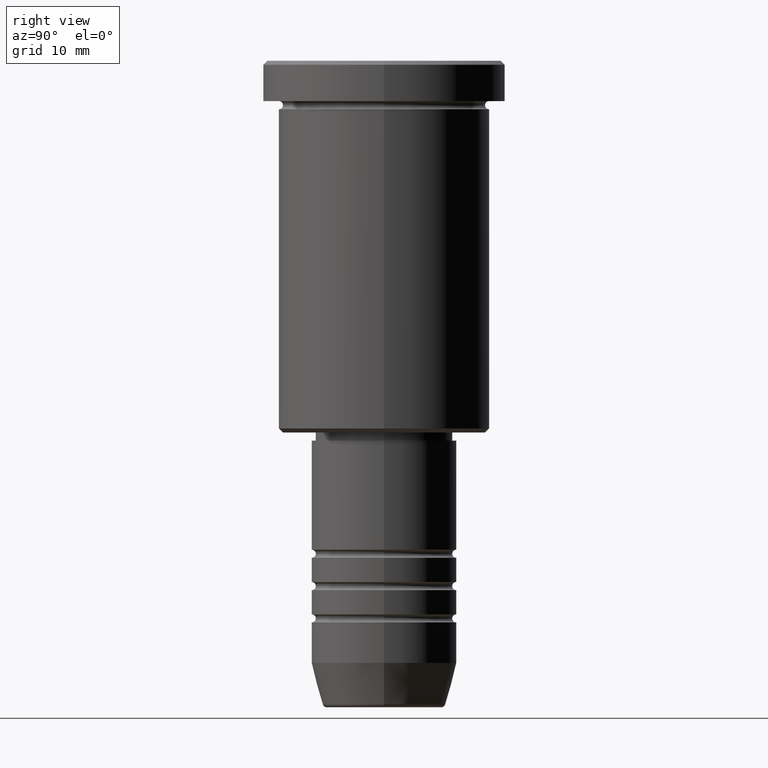
[diagram: clean part render]
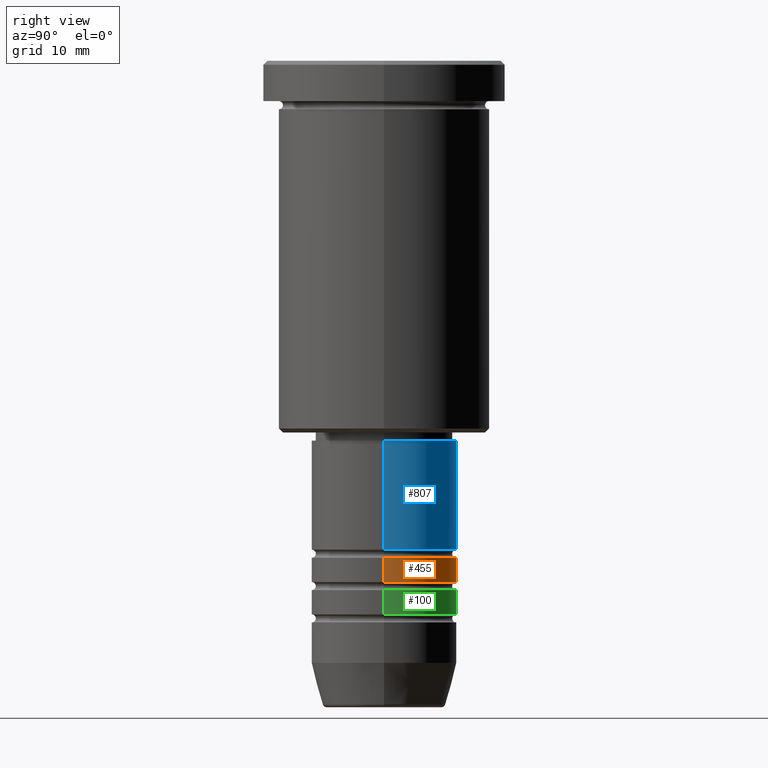
[diagram: same view with three faces highlighted in distinct colors, each labeled with its STEP entity id]
A machine part, right view with three faces highlighted in distinct colors.
Their STEP definitions:

[orange] entity #455 — the highlighted cylindrical surface (partial cylindrical patch) has radius 9 mm, axis along (-0, -0, 1).
#50 = AXIS2_PLACEMENT_3D ( 'NONE', #548, #855, #992 ) ;
#102 = CIRCLE ( 'NONE', #50, 9.000000000000001776 ) ;
#142 = CARTESIAN_POINT ( 'NONE',  ( -9.000000000000000000, 1.102182119232617714E-15, -61.50000000000000711 ) ) ;
#148 = AXIS2_PLACEMENT_3D ( 'NONE', #1181, #265, #175 ) ;
#158 = LINE ( 'NONE', #710, #492 ) ;
#175 = DIRECTION ( 'NONE',  ( 1.000000000000000000, 0.000000000000000000, 0.000000000000000000 ) ) ;
#233 = EDGE_CURVE ( 'NONE', #371, #401, #982, .T. ) ;
#257 = CYLINDRICAL_SURFACE ( 'NONE', #680, 9.000000000000001776 ) ;
#265 = DIRECTION ( 'NONE',  ( -0.000000000000000000, -0.000000000000000000, 1.000000000000000000 ) ) ;
#331 = DIRECTION ( 'NONE',  ( -0.000000000000000000, -0.000000000000000000, 1.000000000000000000 ) ) ;
#350 = EDGE_LOOP ( 'NONE', ( #846, #728, #838, #488 ) ) ;
#358 = CARTESIAN_POINT ( 'NONE',  ( 0.000000000000000000, 0.000000000000000000, 0.000000000000000000 ) ) ;
#371 = VERTEX_POINT ( 'NONE', #844 ) ;
#378 = VERTEX_POINT ( 'NONE', #869 ) ;
#401 = VERTEX_POINT ( 'NONE', #142 ) ;
#424 = EDGE_CURVE ( 'NONE', #773, #371, #102, .T. ) ;
#449 = DIRECTION ( 'NONE',  ( -0.000000000000000000, -0.000000000000000000, 1.000000000000000000 ) ) ;
#455 = ADVANCED_FACE ( 'NONE', ( #712 ), #257, .T. ) ;
#488 = ORIENTED_EDGE ( 'NONE', *, *, #889, .F. ) ;
#492 = VECTOR ( 'NONE', #715, 1000.000000000000000 ) ;
#513 = EDGE_CURVE ( 'NONE', #378, #401, #777, .T. ) ;
#540 = DIRECTION ( 'NONE',  ( 1.000000000000000000, 0.000000000000000000, 0.000000000000000000 ) ) ;
#548 = CARTESIAN_POINT ( 'NONE',  ( 0.000000000000000000, 0.000000000000000000, -64.50000000000000000 ) ) ;
#680 = AXIS2_PLACEMENT_3D ( 'NONE', #358, #449, #540 ) ;
#710 = CARTESIAN_POINT ( 'NONE',  ( 9.000000000000001776, 0.000000000000000000, 0.000000000000000000 ) ) ;
#712 = FACE_OUTER_BOUND ( 'NONE', #350, .T. ) ;
#715 = DIRECTION ( 'NONE',  ( -0.000000000000000000, -0.000000000000000000, 1.000000000000000000 ) ) ;
#728 = ORIENTED_EDGE ( 'NONE', *, *, #233, .T. ) ;
#739 = VECTOR ( 'NONE', #331, 1000.000000000000000 ) ;
#754 = CARTESIAN_POINT ( 'NONE',  ( 9.000000000000001776, 0.000000000000000000, -64.50000000000000000 ) ) ;
#773 = VERTEX_POINT ( 'NONE', #754 ) ;
#777 = CIRCLE ( 'NONE', #148, 9.000000000000000000 ) ;
#782 = CARTESIAN_POINT ( 'NONE',  ( -9.000000000000001776, 1.102182119232617911E-15, 0.000000000000000000 ) ) ;
#838 = ORIENTED_EDGE ( 'NONE', *, *, #513, .F. ) ;
#844 = CARTESIAN_POINT ( 'NONE',  ( -9.000000000000001776, 1.102182119232617911E-15, -64.50000000000000000 ) ) ;
#846 = ORIENTED_EDGE ( 'NONE', *, *, #424, .T. ) ;
#855 = DIRECTION ( 'NONE',  ( -0.000000000000000000, -0.000000000000000000, 1.000000000000000000 ) ) ;
#869 = CARTESIAN_POINT ( 'NONE',  ( 9.000000000000000000, 0.000000000000000000, -61.50000000000000711 ) ) ;
#889 = EDGE_CURVE ( 'NONE', #773, #378, #158, .T. ) ;
#982 = LINE ( 'NONE', #782, #739 ) ;
#992 = DIRECTION ( 'NONE',  ( 1.000000000000000000, 0.000000000000000000, 0.000000000000000000 ) ) ;
#1181 = CARTESIAN_POINT ( 'NONE',  ( 0.000000000000000000, 0.000000000000000000, -61.50000000000000711 ) ) ;

[blue] entity #807 — the highlighted cylindrical surface (partial cylindrical patch) has radius 9 mm, axis along (-0, -0, 1).
#28 = EDGE_LOOP ( 'NONE', ( #266, #143, #157, #1178 ) ) ;
#86 = DIRECTION ( 'NONE',  ( 1.000000000000000000, 0.000000000000000000, 0.000000000000000000 ) ) ;
#143 = ORIENTED_EDGE ( 'NONE', *, *, #254, .T. ) ;
#157 = ORIENTED_EDGE ( 'NONE', *, *, #289, .F. ) ;
#177 = CARTESIAN_POINT ( 'NONE',  ( 9.000000000000000000, 0.000000000000000000, 0.000000000000000000 ) ) ;
#248 = DIRECTION ( 'NONE',  ( 1.000000000000000000, 0.000000000000000000, 0.000000000000000000 ) ) ;
#254 = EDGE_CURVE ( 'NONE', #1051, #1011, #966, .T. ) ;
#266 = ORIENTED_EDGE ( 'NONE', *, *, #873, .T. ) ;
#286 = LINE ( 'NONE', #177, #930 ) ;
#289 = EDGE_CURVE ( 'NONE', #465, #1011, #477, .T. ) ;
#309 = CARTESIAN_POINT ( 'NONE',  ( 9.000000000000001776, 0.000000000000000000, -60.50000000000000711 ) ) ;
#367 = CARTESIAN_POINT ( 'NONE',  ( -9.000000000000001776, 1.102182119232617911E-15, -60.50000000000000711 ) ) ;
#419 = CYLINDRICAL_SURFACE ( 'NONE', #1142, 9.000000000000000000 ) ;
#421 = DIRECTION ( 'NONE',  ( -0.000000000000000000, -0.000000000000000000, 1.000000000000000000 ) ) ;
#437 = DIRECTION ( 'NONE',  ( -0.000000000000000000, -0.000000000000000000, 1.000000000000000000 ) ) ;
#465 = VERTEX_POINT ( 'NONE', #543 ) ;
#477 = CIRCLE ( 'NONE', #1132, 8.999999999999998224 ) ;
#497 = CARTESIAN_POINT ( 'NONE',  ( 0.000000000000000000, 0.000000000000000000, -60.50000000000000711 ) ) ;
#503 = FACE_OUTER_BOUND ( 'NONE', #28, .T. ) ;
#543 = CARTESIAN_POINT ( 'NONE',  ( 8.999999999999998224, 0.000000000000000000, -47.00000000000000000 ) ) ;
#597 = CARTESIAN_POINT ( 'NONE',  ( -8.999999999999998224, 1.102182119232617714E-15, -47.00000000000000000 ) ) ;
#668 = CARTESIAN_POINT ( 'NONE',  ( 0.000000000000000000, 0.000000000000000000, 0.000000000000000000 ) ) ;
#698 = VECTOR ( 'NONE', #437, 1000.000000000000000 ) ;
#722 = VERTEX_POINT ( 'NONE', #309 ) ;
#723 = DIRECTION ( 'NONE',  ( -0.000000000000000000, -0.000000000000000000, 1.000000000000000000 ) ) ;
#807 = ADVANCED_FACE ( 'NONE', ( #503 ), #419, .T. ) ;
#811 = CIRCLE ( 'NONE', #1046, 9.000000000000001776 ) ;
#870 = DIRECTION ( 'NONE',  ( -0.000000000000000000, -0.000000000000000000, 1.000000000000000000 ) ) ;
#873 = EDGE_CURVE ( 'NONE', #722, #1051, #811, .T. ) ;
#882 = CARTESIAN_POINT ( 'NONE',  ( -9.000000000000000000, 1.102182119232617714E-15, 0.000000000000000000 ) ) ;
#930 = VECTOR ( 'NONE', #723, 1000.000000000000000 ) ;
#966 = LINE ( 'NONE', #882, #698 ) ;
#1011 = VERTEX_POINT ( 'NONE', #597 ) ;
#1044 = DIRECTION ( 'NONE',  ( 1.000000000000000000, 0.000000000000000000, 0.000000000000000000 ) ) ;
#1046 = AXIS2_PLACEMENT_3D ( 'NONE', #497, #1050, #86 ) ;
#1050 = DIRECTION ( 'NONE',  ( -0.000000000000000000, -0.000000000000000000, 1.000000000000000000 ) ) ;
#1051 = VERTEX_POINT ( 'NONE', #367 ) ;
#1066 = CARTESIAN_POINT ( 'NONE',  ( 0.000000000000000000, 0.000000000000000000, -47.00000000000000000 ) ) ;
#1100 = EDGE_CURVE ( 'NONE', #722, #465, #286, .T. ) ;
#1132 = AXIS2_PLACEMENT_3D ( 'NONE', #1066, #421, #248 ) ;
#1142 = AXIS2_PLACEMENT_3D ( 'NONE', #668, #870, #1044 ) ;
#1178 = ORIENTED_EDGE ( 'NONE', *, *, #1100, .F. ) ;

[green] entity #100 — the highlighted cylindrical surface (partial cylindrical patch) has radius 9 mm, axis along (-0, -0, 1).
#100 = ADVANCED_FACE ( 'NONE', ( #862 ), #645, .T. ) ;
#106 = CARTESIAN_POINT ( 'NONE',  ( -9.000000000000001776, 1.102182119232617911E-15, -68.50000000000000000 ) ) ;
#107 = VERTEX_POINT ( 'NONE', #879 ) ;
#120 = EDGE_CURVE ( 'NONE', #107, #753, #516, .T. ) ;
#217 = DIRECTION ( 'NONE',  ( 1.000000000000000000, 0.000000000000000000, 0.000000000000000000 ) ) ;
#276 = CARTESIAN_POINT ( 'NONE',  ( 9.000000000000001776, 0.000000000000000000, -68.50000000000000000 ) ) ;
#300 = CARTESIAN_POINT ( 'NONE',  ( 0.000000000000000000, 0.000000000000000000, -65.50000000000000000 ) ) ;
#347 = DIRECTION ( 'NONE',  ( 1.000000000000000000, 0.000000000000000000, 0.000000000000000000 ) ) ;
#365 = LINE ( 'NONE', #463, #595 ) ;
#366 = ORIENTED_EDGE ( 'NONE', *, *, #908, .T. ) ;
#426 = CARTESIAN_POINT ( 'NONE',  ( -9.000000000000001776, 1.102182119232617911E-15, 0.000000000000000000 ) ) ;
#463 = CARTESIAN_POINT ( 'NONE',  ( 9.000000000000001776, 0.000000000000000000, 0.000000000000000000 ) ) ;
#489 = ORIENTED_EDGE ( 'NONE', *, *, #120, .F. ) ;
#516 = CIRCLE ( 'NONE', #677, 9.000000000000000000 ) ;
#519 = EDGE_CURVE ( 'NONE', #1086, #753, #1081, .T. ) ;
#533 = DIRECTION ( 'NONE',  ( -0.000000000000000000, -0.000000000000000000, 1.000000000000000000 ) ) ;
#595 = VECTOR ( 'NONE', #829, 1000.000000000000000 ) ;
#598 = EDGE_LOOP ( 'NONE', ( #366, #705, #489, #1150 ) ) ;
#645 = CYLINDRICAL_SURFACE ( 'NONE', #1074, 9.000000000000001776 ) ;
#665 = EDGE_CURVE ( 'NONE', #690, #107, #365, .T. ) ;
#667 = DIRECTION ( 'NONE',  ( -0.000000000000000000, -0.000000000000000000, 1.000000000000000000 ) ) ;
#677 = AXIS2_PLACEMENT_3D ( 'NONE', #300, #1027, #217 ) ;
#690 = VERTEX_POINT ( 'NONE', #276 ) ;
#705 = ORIENTED_EDGE ( 'NONE', *, *, #519, .T. ) ;
#713 = CIRCLE ( 'NONE', #1092, 9.000000000000001776 ) ;
#753 = VERTEX_POINT ( 'NONE', #941 ) ;
#829 = DIRECTION ( 'NONE',  ( -0.000000000000000000, -0.000000000000000000, 1.000000000000000000 ) ) ;
#862 = FACE_OUTER_BOUND ( 'NONE', #598, .T. ) ;
#879 = CARTESIAN_POINT ( 'NONE',  ( 9.000000000000000000, 0.000000000000000000, -65.50000000000000000 ) ) ;
#908 = EDGE_CURVE ( 'NONE', #690, #1086, #713, .T. ) ;
#941 = CARTESIAN_POINT ( 'NONE',  ( -9.000000000000000000, 1.102182119232617714E-15, -65.50000000000000000 ) ) ;
#1027 = DIRECTION ( 'NONE',  ( -0.000000000000000000, -0.000000000000000000, 1.000000000000000000 ) ) ;
#1074 = AXIS2_PLACEMENT_3D ( 'NONE', #1180, #667, #347 ) ;
#1080 = CARTESIAN_POINT ( 'NONE',  ( 0.000000000000000000, 0.000000000000000000, -68.50000000000000000 ) ) ;
#1081 = LINE ( 'NONE', #426, #1090 ) ;
#1086 = VERTEX_POINT ( 'NONE', #106 ) ;
#1090 = VECTOR ( 'NONE', #533, 1000.000000000000000 ) ;
#1092 = AXIS2_PLACEMENT_3D ( 'NONE', #1080, #1093, #1166 ) ;
#1093 = DIRECTION ( 'NONE',  ( -0.000000000000000000, -0.000000000000000000, 1.000000000000000000 ) ) ;
#1150 = ORIENTED_EDGE ( 'NONE', *, *, #665, .F. ) ;
#1166 = DIRECTION ( 'NONE',  ( 1.000000000000000000, 0.000000000000000000, 0.000000000000000000 ) ) ;
#1180 = CARTESIAN_POINT ( 'NONE',  ( 0.000000000000000000, 0.000000000000000000, 0.000000000000000000 ) ) ;